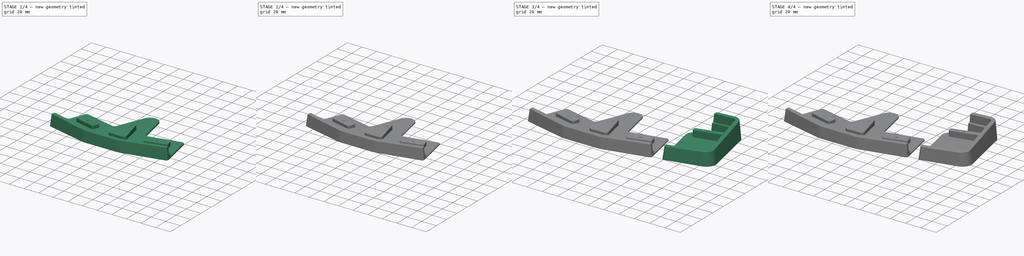
[diagram: build sequence overview — one tinted view per stage of 4, left to right]
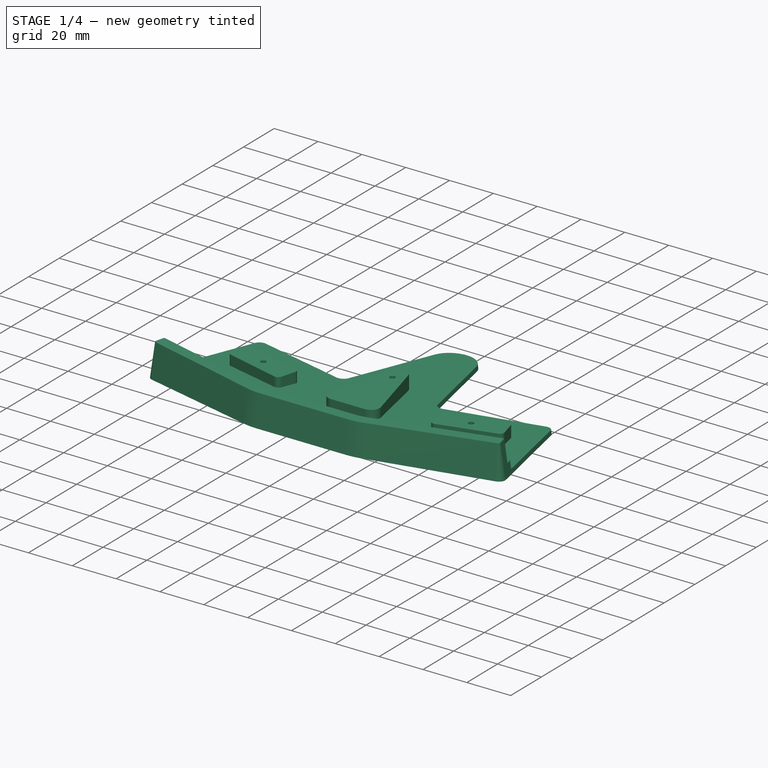
[diagram: stage 1 of 4 — iso view after this stage's code; geometry added in this stage tinted green]
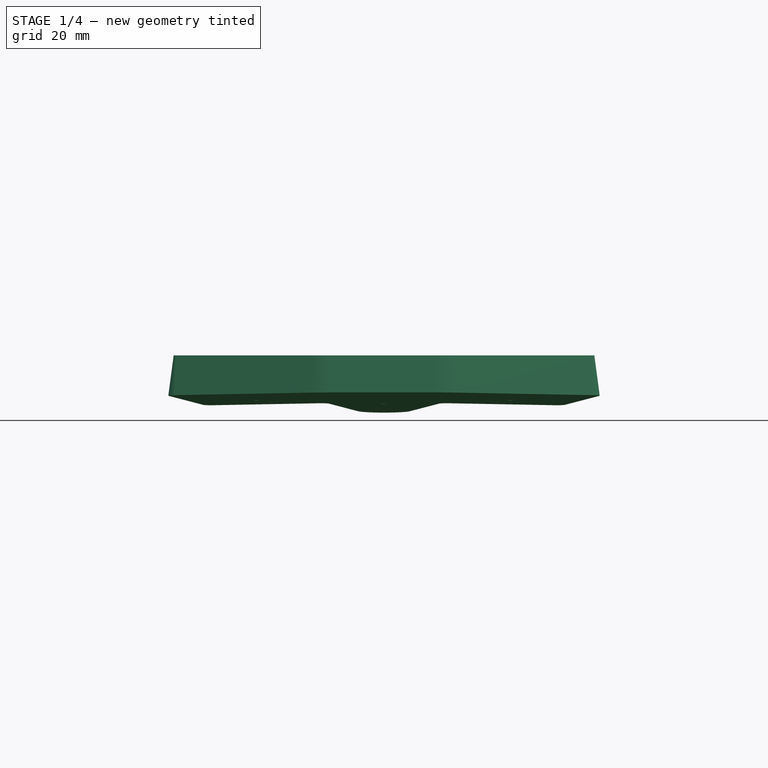
[diagram: stage 1 of 4 — front view after this stage's code; geometry added in this stage tinted green]
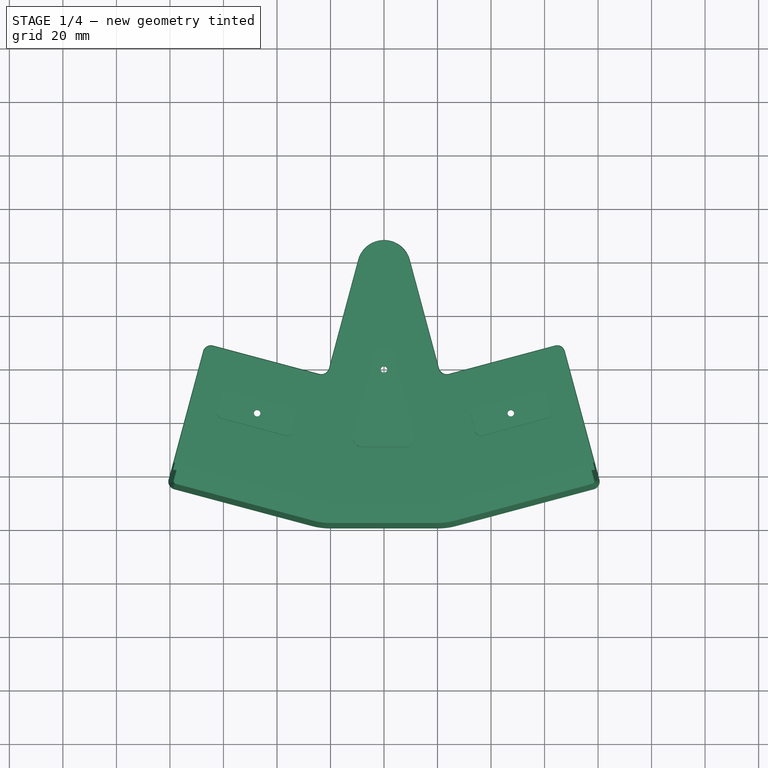
[diagram: stage 1 of 4 — top view after this stage's code; geometry added in this stage tinted green]
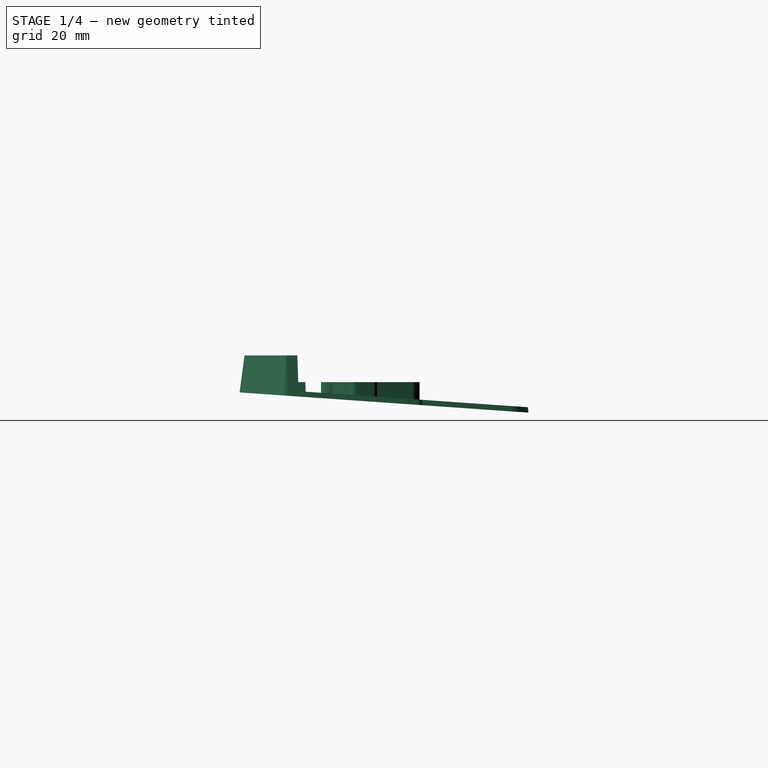
[diagram: stage 1 of 4 — right view after this stage's code; geometry added in this stage tinted green]
FCSTD DOCUMENT  (FreeCAD 0.20R)
Label: case.v5.1
License: All rights reserved
LicenseURL: http://en.wikipedia.org/wiki/All_rights_reserved
objects: Sketcher::SketchObject×10, PartDesign::Pocket×4, PartDesign::Fillet×4, PartDesign::AdditiveLoft×2, PartDesign::Hole×2, PartDesign::Chamfer×2, PartDesign::Body×2
note: 40 computed .brp shape members not serialized (recipe doc carries the construction recipe); baked Part::Feature solids carry a one-line shape summary decoded from their .brp

FEATURE [PartDesign::Body] Body  label="ext"
  Group = -> [Sketch001,Sketch,AdditiveLoft,Sketch002,Pocket,Sketch003,Pocket001,Sketch004,Hole,Chamfer,Fillet,Fillet001]
  Origin = -> Origin
  Tip = -> Fillet001
FEATURE [Sketcher::SketchObject] Sketch005
  AttachmentOffset = pos=(0,0,0) rot=(1,0,0;-0.069813rad)
  FullyConstrained = false
  MapMode = 5
  Placement = pos=(0,0,0) rot=(1,0,0;6.21337rad)
  Support = -> [XY_Plane001]
  sketch-geometry (18):
    g0: ArcOfCircle CenterX=19.8438 CenterY=-31.8435 CenterZ=0 NormalX=0 NormalY=0 NormalZ=1 AngleXU=0 Radius=27.75 StartAngle=4.71239 EndAngle=4.97419
    g1: LineSegment StartX=-19.8438 StartY=-59.5935 StartZ=0 EndX=19.8438 EndY=-59.5935 EndZ=0
    g2: ArcOfCircle CenterX=-19.8438 CenterY=-31.8435 CenterZ=0 NormalX=0 NormalY=0 NormalZ=1 AngleXU=0 Radius=27.75 StartAngle=4.45059 EndAngle=4.71239
    g3: LineSegment StartX=78.3859 StartY=-44.8861 StartZ=0 EndX=27.026 EndY=-58.648 EndZ=0
    g4: ArcOfCircle CenterX=77.6095 CenterY=-41.9883 CenterZ=0 NormalX=0 NormalY=0 NormalZ=1 AngleXU=0 Radius=3 StartAngle=4.97419 EndAngle=6.54498
    g5: LineSegment StartX=-78.3859 StartY=-44.8861 StartZ=0 EndX=-27.026 EndY=-58.648 EndZ=0
    g6: ArcOfCircle CenterX=-77.6095 CenterY=-41.9883 CenterZ=0 NormalX=0 NormalY=0 NormalZ=1 AngleXU=0 Radius=3 StartAngle=2.87979 EndAngle=4.45059
    g7: LineSegment StartX=80.5073 StartY=-41.2119 StartZ=0 EndX=67.6051 EndY=6.93952 EndZ=0
    g8: ArcOfCircle CenterX=64.7074 CenterY=6.16307 CenterZ=0 NormalX=0 NormalY=0 NormalZ=1 AngleXU=0 Radius=3 StartAngle=0.261799 EndAngle=1.8326
    g9: LineSegment StartX=-80.5073 StartY=-41.2119 StartZ=0 EndX=-67.6051 EndY=6.93952 EndZ=0
    g10: ArcOfCircle CenterX=-64.7074 CenterY=6.16307 CenterZ=0 NormalX=0 NormalY=0 NormalZ=1 AngleXU=0 Radius=3 StartAngle=1.309 EndAngle=2.87979
    g11: LineSegment StartX=-24.2314 StartY=-1.57662 StartZ=0 EndX=-63.9309 EndY=9.06084 EndZ=0
    g12: ArcOfCircle CenterX=-23.4549 CenterY=1.32116 CenterZ=0 NormalX=0 NormalY=0 NormalZ=1 AngleXU=0 Radius=3 StartAngle=4.45059 EndAngle=6.02139
    g13: LineSegment StartX=24.2314 StartY=-1.57662 StartZ=0 EndX=63.9309 EndY=9.06084 EndZ=0
    g14: ArcOfCircle CenterX=23.4549 CenterY=1.32116 CenterZ=0 NormalX=0 NormalY=0 NormalZ=1 AngleXU=0 Radius=3 StartAngle=3.40339 EndAngle=4.97419
    g15: LineSegment StartX=-9.65926 StartY=41.2161 StartZ=0 EndX=-20.5571 EndY=0.544701 EndZ=0
    g16: LineSegment StartX=9.65926 StartY=41.2161 StartZ=0 EndX=20.5571 EndY=0.544701 EndZ=0
    g17: ArcOfCircle CenterX=3.91e-14 CenterY=38.6279 CenterZ=0 NormalX=0 NormalY=0 NormalZ=1 AngleXU=0 Radius=10 StartAngle=0.261799 EndAngle=2.87979
  constraints (18):
    c: Coincident(g6,g9)
    c: Coincident(g5,g6)
    c: Coincident(g9,g10)
    c: Coincident(g10,g11)
    c: Coincident(g2,g5)
    c: Coincident(g11,g12)
    c: Coincident(g12,g15)
    c: Coincident(g1,g2)
    c: Coincident(g15,g17)
    c: Coincident(g16,g17)
    c: Coincident(g0,g1)
    c: Coincident(g14,g16)
    c: Coincident(g13,g14)
    c: Coincident(g0,g3)
    c: Coincident(g8,g13)
    c: Coincident(g7,g8)
    c: Coincident(g3,g4)
    c: Coincident(g4,g7)
FEATURE [Sketcher::SketchObject] Sketch006
  AttachmentOffset = pos=(0,0,18) rot=(0,0,1;0rad)
  FullyConstrained = false
  MapMode = 5
  Placement = pos=(0,0,18) rot=(0,0,1;0rad)
  Support = -> [XY_Plane001]
  sketch-geometry (18):
    g0: ArcOfCircle CenterX=77.6095 CenterY=-41.9883 CenterZ=0 NormalX=0 NormalY=0 NormalZ=1 AngleXU=0 Radius=1 StartAngle=4.97419 EndAngle=6.54498
    g1: LineSegment StartX=77.8683 StartY=-42.9543 StartZ=0 EndX=26.5084 EndY=-56.7161 EndZ=0
    g2: ArcOfCircle CenterX=19.8438 CenterY=-31.8435 CenterZ=0 NormalX=0 NormalY=0 NormalZ=1 AngleXU=0 Radius=25.75 StartAngle=4.71239 EndAngle=4.97419
    g3: LineSegment StartX=-19.8438 StartY=-57.5935 StartZ=0 EndX=19.8438 EndY=-57.5935 EndZ=0
    g4: ArcOfCircle CenterX=-19.8438 CenterY=-31.8435 CenterZ=0 NormalX=0 NormalY=0 NormalZ=1 AngleXU=0 Radius=25.75 StartAngle=4.45059 EndAngle=4.71239
    g5: LineSegment StartX=-77.8683 StartY=-42.9543 StartZ=0 EndX=-26.5084 EndY=-56.7161 EndZ=0
    g6: ArcOfCircle CenterX=-77.6095 CenterY=-41.9883 CenterZ=0 NormalX=0 NormalY=0 NormalZ=1 AngleXU=0 Radius=1 StartAngle=2.87979 EndAngle=4.45059
    g7: LineSegment StartX=78.5754 StartY=-41.7295 StartZ=0 EndX=65.6733 EndY=6.42188 EndZ=0
    g8: ArcOfCircle CenterX=64.7074 CenterY=6.16307 CenterZ=0 NormalX=0 NormalY=0 NormalZ=1 AngleXU=0 Radius=1 StartAngle=0.261799 EndAngle=1.8326
    g9: ArcOfCircle CenterX=23.4549 CenterY=1.32116 CenterZ=0 NormalX=0 NormalY=0 NormalZ=1 AngleXU=0 Radius=5 StartAngle=3.40339 EndAngle=4.97419
    g10: ArcOfCircle CenterX=-23.4549 CenterY=1.32116 CenterZ=0 NormalX=0 NormalY=0 NormalZ=1 AngleXU=0 Radius=5 StartAngle=4.45059 EndAngle=6.02139
    g11: LineSegment StartX=24.749 StartY=-3.50847 StartZ=0 EndX=64.4485 EndY=7.12899 EndZ=0
    g12: LineSegment StartX=-24.749 StartY=-3.50847 StartZ=0 EndX=-64.4485 EndY=7.12899 EndZ=0
    g13: LineSegment StartX=-78.5754 StartY=-41.7295 StartZ=0 EndX=-65.6733 EndY=6.42188 EndZ=0
    g14: ArcOfCircle CenterX=-64.7074 CenterY=6.16307 CenterZ=0 NormalX=0 NormalY=0 NormalZ=1 AngleXU=0 Radius=1 StartAngle=1.309 EndAngle=2.87979
    g15: ArcOfCircle CenterX=3.91e-14 CenterY=38.6279 CenterZ=0 NormalX=0 NormalY=0 NormalZ=1 AngleXU=0 Radius=8 StartAngle=0.261799 EndAngle=2.87979
    g16: LineSegment StartX=7.72741 StartY=40.6984 StartZ=0 EndX=18.6253 EndY=0.0270627 EndZ=0
    g17: LineSegment StartX=-7.72741 StartY=40.6984 StartZ=0 EndX=-18.6253 EndY=0.0270627 EndZ=0
  constraints (18):
    c: Coincident(g6,g13)
    c: Coincident(g5,g6)
    c: Coincident(g13,g14)
    c: Coincident(g12,g14)
    c: Coincident(g4,g5)
    c: Coincident(g10,g12)
    c: Coincident(g3,g4)
    c: Coincident(g10,g17)
    c: Coincident(g15,g17)
    c: Coincident(g15,g16)
    c: Coincident(g9,g16)
    c: Coincident(g2,g3)
    c: Coincident(g9,g11)
    c: Coincident(g1,g2)
    c: Coincident(g8,g11)
    c: Coincident(g7,g8)
    c: Coincident(g0,g1)
    c: Coincident(g0,g7)
FEATURE [PartDesign::AdditiveLoft] AdditiveLoft001
  Closed = true
  Profile = -> Sketch005
  Ruled = true
  Sections = -> [Sketch006]
FEATURE [Sketcher::SketchObject] Sketch007
  FullyConstrained = false
  MapMode = 5
  Placement = pos=(0,0,18) rot=(0,0,1;0rad)
  Support = -> [AdditiveLoft001]
  sketch-geometry (8):
    g0: ArcOfCircle CenterX=19.8438 CenterY=-31.8435 CenterZ=0 NormalX=0 NormalY=0 NormalZ=1 AngleXU=0 Radius=20.75 StartAngle=4.71239 EndAngle=4.97419
    g1: LineSegment StartX=-19.8438 StartY=-52.5935 StartZ=0 EndX=19.8438 EndY=-52.5935 EndZ=0
    g2: ArcOfCircle CenterX=-19.8438 CenterY=-31.8435 CenterZ=0 NormalX=0 NormalY=0 NormalZ=1 AngleXU=0 Radius=20.75 StartAngle=4.45059 EndAngle=4.71239
    g3: LineSegment StartX=81.4038 StartY=-36.8305 StartZ=0 EndX=25.2143 EndY=-51.8865 EndZ=0
    g4: LineSegment StartX=-81.4038 StartY=-36.8305 StartZ=0 EndX=-25.2143 EndY=-51.8865 EndZ=0
    g5: LineSegment StartX=81.4038 StartY=-36.8305 StartZ=0 EndX=58.1377 EndY=50 EndZ=0
    g6: LineSegment StartX=-81.4038 StartY=-36.8305 StartZ=0 EndX=-58.1377 EndY=50 EndZ=0
    g7: LineSegment StartX=-58.1377 StartY=50 StartZ=0 EndX=58.1377 EndY=50 EndZ=0
FEATURE [PartDesign::Pocket] Pocket002
  BaseFeature = -> AdditiveLoft001
  Direction = (0,0,-1)
  Length = 10
  Length2 = 5
  Profile = -> Sketch007
  ReferenceAxis = -> Sketch007 [N_Axis]
  Type = 0
FEATURE [Sketcher::SketchObject] Sketch008
  FullyConstrained = false
  MapMode = 5
  Placement = pos=(0,0,8) rot=(0,0,1;0rad)
  Support = -> [Pocket002]
  sketch-geometry (33):
    g0: Circle CenterX=47.4001 CenterY=-16.3717 CenterZ=0 NormalX=0 NormalY=0 NormalZ=-1 AngleXU=0 Radius=1.1
    g1: Circle CenterX=0 CenterY=0 CenterZ=0 NormalX=0 NormalY=0 NormalZ=-1 AngleXU=0 Radius=1.1
    g2: ArcOfCircle CenterX=58.6716 CenterY=-9.94809 CenterZ=0 NormalX=0 NormalY=0 NormalZ=1 AngleXU=0 Radius=2 StartAngle=0.261799 EndAngle=1.8326
    g3: LineSegment StartX=62.3052 StartY=-15.7814 StartZ=0 EndX=60.6034 EndY=-9.43045 EndZ=0
    g4: ArcOfCircle CenterX=60.3733 CenterY=-16.299 CenterZ=0 NormalX=0 NormalY=0 NormalZ=1 AngleXU=0 Radius=2 StartAngle=4.97419 EndAngle=6.54498
    g5: LineSegment StartX=60.8909 StartY=-18.2309 StartZ=0 EndX=36.6462 EndY=-24.7273 EndZ=0
    g6: ArcOfCircle CenterX=36.1286 CenterY=-22.7954 CenterZ=0 NormalX=0 NormalY=0 NormalZ=1 AngleXU=0 Radius=2 StartAngle=3.40339 EndAngle=4.97419
    g7: LineSegment StartX=32.495 StartY=-16.9621 StartZ=0 EndX=34.1967 EndY=-23.313 EndZ=0
    g8: LineSegment StartX=58.1539 StartY=-8.01623 StartZ=0 EndX=33.9092 EndY=-14.5126 EndZ=0
    g9: ArcOfCircle CenterX=34.4268 CenterY=-16.4444 CenterZ=0 NormalX=0 NormalY=0 NormalZ=1 AngleXU=0 Radius=2 StartAngle=1.8326 EndAngle=3.40339
    g10: ArcOfCircle CenterX=9e-15 CenterY=3.85454 CenterZ=0 NormalX=0 NormalY=0 NormalZ=1 AngleXU=0 Radius=4 StartAngle=0.261799 EndAngle=2.87979
    g11: LineSegment StartX=3.8637 StartY=4.88982 StartZ=0 EndX=11.5953 EndY=-23.9647 EndZ=0
    g12: ArcOfCircle CenterX=7.73155 CenterY=-25 CenterZ=0 NormalX=0 NormalY=0 NormalZ=1 AngleXU=0 Radius=4 StartAngle=4.71239 EndAngle=6.54498
    g13: LineSegment StartX=-7.73155 StartY=-29 StartZ=0 EndX=7.73155 EndY=-29 EndZ=0
    g14: LineSegment StartX=-3.8637 StartY=4.88982 StartZ=0 EndX=-11.5953 EndY=-23.9647 EndZ=0
    g15: ArcOfCircle CenterX=-7.73155 CenterY=-25 CenterZ=0 NormalX=0 NormalY=0 NormalZ=1 AngleXU=0 Radius=4 StartAngle=2.87979 EndAngle=4.71239
    g16: Circle CenterX=-47.4001 CenterY=-16.3717 CenterZ=0 NormalX=0 NormalY=0 NormalZ=-1 AngleXU=0 Radius=1.1
    g17: ArcOfCircle CenterX=-58.6716 CenterY=-9.94809 CenterZ=0 NormalX=0 NormalY=0 NormalZ=1 AngleXU=0 Radius=2 StartAngle=1.309 EndAngle=2.87979
    g18: LineSegment StartX=-62.3052 StartY=-15.7814 StartZ=0 EndX=-60.6034 EndY=-9.43045 EndZ=0
    g19: ArcOfCircle CenterX=-60.3733 CenterY=-16.299 CenterZ=0 NormalX=0 NormalY=0 NormalZ=1 AngleXU=0 Radius=2 StartAngle=2.87979 EndAngle=4.45059
    g20: LineSegment StartX=-60.8909 StartY=-18.2309 StartZ=0 EndX=-36.6462 EndY=-24.7273 EndZ=0
    g21: ArcOfCircle CenterX=-36.1286 CenterY=-22.7954 CenterZ=0 NormalX=0 NormalY=0 NormalZ=1 AngleXU=0 Radius=2 StartAngle=4.45059 EndAngle=6.02139
    g22: LineSegment StartX=-32.495 StartY=-16.9621 StartZ=0 EndX=-34.1967 EndY=-23.313 EndZ=0
    g23: LineSegment StartX=-58.1539 StartY=-8.01623 StartZ=0 EndX=-33.9092 EndY=-14.5126 EndZ=0
    g24: ArcOfCircle CenterX=-34.4268 CenterY=-16.4444 CenterZ=0 NormalX=0 NormalY=0 NormalZ=1 AngleXU=0 Radius=2 StartAngle=6.02139 EndAngle=7.59218
    g25: ArcOfCircle CenterX=19.8438 CenterY=-31.8435 CenterZ=0 NormalX=0 NormalY=0 NormalZ=1 AngleXU=0 Radius=18 StartAngle=4.71239 EndAngle=4.97419
    g26: LineSegment StartX=-19.8438 StartY=-49.8435 StartZ=0 EndX=19.8438 EndY=-49.8435 EndZ=0
    g27: ArcOfCircle CenterX=-19.8438 CenterY=-31.8435 CenterZ=0 NormalX=0 NormalY=0 NormalZ=1 AngleXU=0 Radius=18 StartAngle=4.45059 EndAngle=4.71239
    g28: LineSegment StartX=80.6921 StartY=-34.1742 StartZ=0 EndX=24.5026 EndY=-49.2302 EndZ=0
    g29: LineSegment StartX=-80.6921 StartY=-34.1742 StartZ=0 EndX=-24.5026 EndY=-49.2302 EndZ=0
    g30: LineSegment StartX=80.6921 StartY=-34.1742 StartZ=0 EndX=58.1377 EndY=50 EndZ=0
    g31: LineSegment StartX=-80.6921 StartY=-34.1742 StartZ=0 EndX=-58.1377 EndY=50 EndZ=0
    g32: LineSegment StartX=-58.1377 StartY=50 StartZ=0 EndX=58.1377 EndY=50 EndZ=0
  constraints (30):
    c: Coincident(g29,g31)
    c: Coincident(g18,g19)
    c: Coincident(g19,g20)
    c: Coincident(g17,g18)
    c: Coincident(g17,g23)
    c: Coincident(g31,g32)
    c: Coincident(g20,g21)
    c: Coincident(g21,g22)
    c: Coincident(g23,g24)
    c: Coincident(g22,g24)
    c: Coincident(g27,g29)
    c: Coincident(g26,g27)
    c: Coincident(g14,g15)
    c: Coincident(g13,g15)
    c: Coincident(g10,g14)
    c: Coincident(g10,g11)
    c: Coincident(g12,g13)
    c: Coincident(g11,g12)
    c: Coincident(g25,g26)
    c: Coincident(g25,g28)
    c: Coincident(g7,g9)
    c: Coincident(g8,g9)
    c: Coincident(g6,g7)
    c: Coincident(g5,g6)
    c: Coincident(g30,g32)
    c: Coincident(g2,g8)
    c: Coincident(g2,g3)
    c: Coincident(g4,g5)
    c: Coincident(g3,g4)
    c: Coincident(g28,g30)
FEATURE [PartDesign::Pocket] Pocket003
  BaseFeature = -> Pocket002
  Direction = (0,0,-1)
  Length = 0
  Length2 = 5
  Offset = -2
  Profile = -> Sketch008
  ReferenceAxis = -> Sketch008 [N_Axis]
  Type = 3
  UpToFace = -> Pocket002 [Face1]
FEATURE [Sketcher::SketchObject] Sketch009
  ExternalGeometry = -> [Pocket003]
  FullyConstrained = true
  MapMode = 5
  Placement = pos=(0,0,8) rot=(0,0,1;0rad)
  Support = -> [Pocket002]
  sketch-geometry (3):
    g0: Circle CenterX=-47.4001 CenterY=-16.3717 CenterZ=0 NormalX=0 NormalY=0 NormalZ=1 AngleXU=0 Radius=1.1
    g1: Circle CenterX=0 CenterY=0 CenterZ=0 NormalX=0 NormalY=0 NormalZ=1 AngleXU=0 Radius=1.1
    g2: Circle CenterX=47.4001 CenterY=-16.3717 CenterZ=0 NormalX=0 NormalY=0 NormalZ=1 AngleXU=0 Radius=1.1
  constraints (6):
    c: Coincident(g0,g-5)
    c: Coincident(g1,g-4)
    c: Coincident(g2,g-3)
    c: Equal(g2,g1)
    c: Equal(g1,g0)
    c: Diameter(g1) = 2.2
FEATURE [PartDesign::Hole] Hole001
  BaseFeature = -> Pocket003
  CustomThreadClearance = 0
  Depth = 394.222
  DepthType = 1
  Diameter = 2.42
  DrillForDepth = false
  DrillPoint = 1
  DrillPointAngle = 118
  HoleCutCountersinkAngle = 90
  HoleCutCustomValues = false
  HoleCutDepth = 0
  HoleCutDiameter = 6.1
  HoleCutType = 0
  ModelThread = false
  Profile = -> Sketch009
  Tapered = false
  TaperedAngle = 90
  ThreadClass = 0
  ThreadDepth = 394.222
  ThreadDepthType = 0
  ThreadDirection = 0
  ThreadFit = 0
  ThreadSize = 7
  ThreadType = 1
  Threaded = false
  UseCustomThreadClearance = false
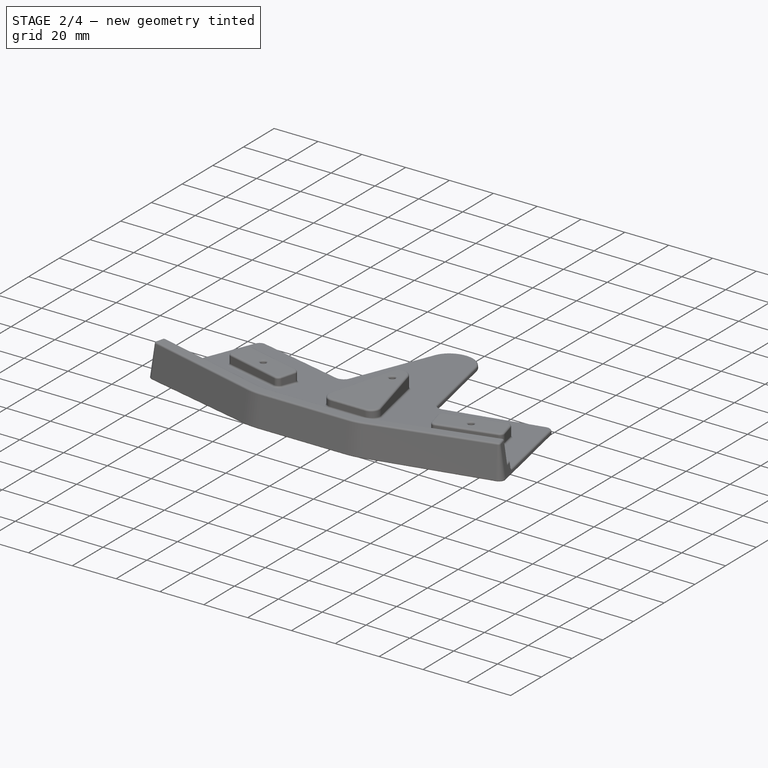
[diagram: stage 2 of 4 — iso view after this stage's code; geometry added in this stage tinted green]
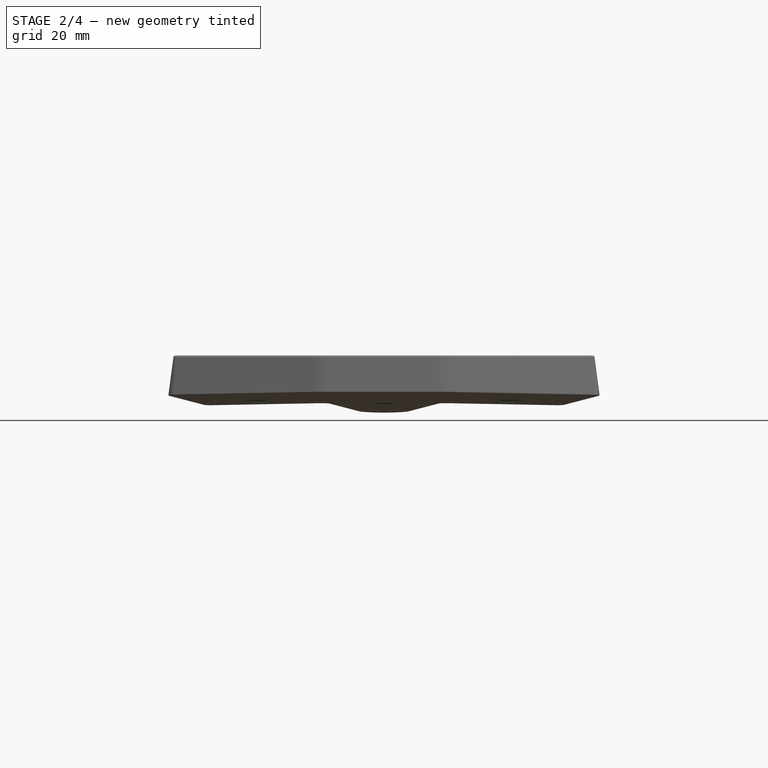
[diagram: stage 2 of 4 — front view after this stage's code; geometry added in this stage tinted green]
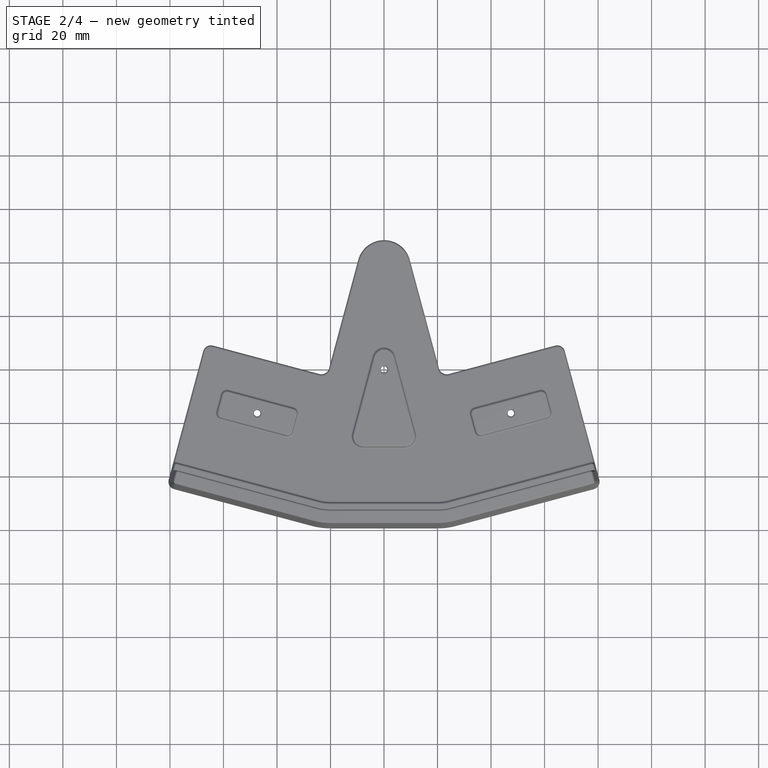
[diagram: stage 2 of 4 — top view after this stage's code; geometry added in this stage tinted green]
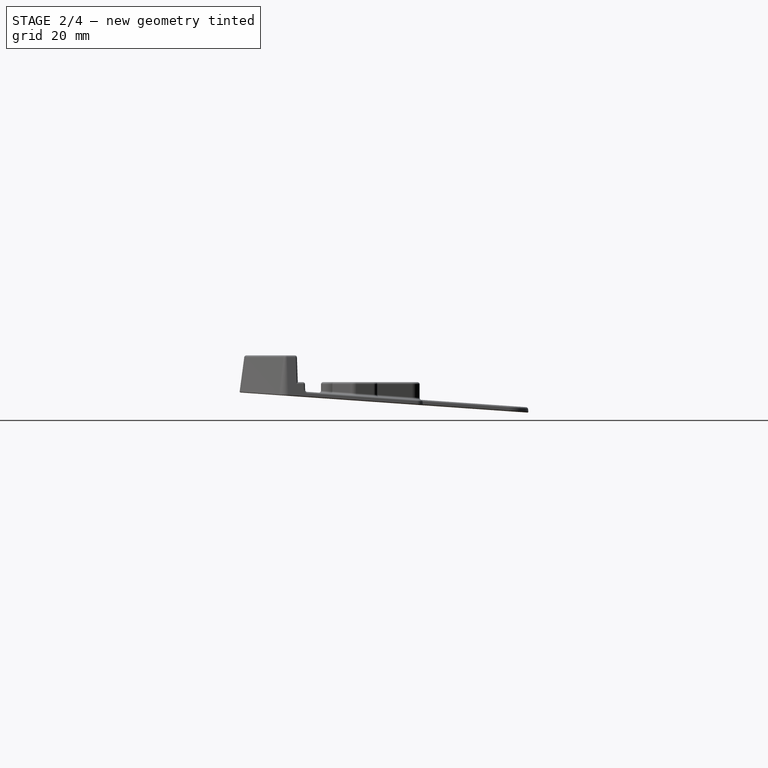
[diagram: stage 2 of 4 — right view after this stage's code; geometry added in this stage tinted green]
FEATURE [PartDesign::Chamfer] Chamfer001
  Angle = 45
  Base = -> Hole001 [Edge21,Edge20,Edge19]
  BaseFeature = -> Hole001
  ChamferType = 0
  FlipDirection = false
  Size = 3
  Size2 = 1
  SupportTransform = false
  UseAllEdges = false
FEATURE [PartDesign::Fillet] Fillet002
  Base = -> Chamfer001 [Face28,Edge51,Edge50,Edge49,Face24,Edge83,Edge40,Edge39,Edge38,Edge139,Edge124,Edge159,Edge121,Edge73,Edge123]
  BaseFeature = -> Chamfer001
  Radius = 0.75
  SupportTransform = false
  UseAllEdges = false
FEATURE [PartDesign::Fillet] Fillet003
  Base = -> Fillet002 [Face4]
  BaseFeature = -> Fillet002
  Radius = 0.35
  SupportTransform = false
  UseAllEdges = false
FEATURE [PartDesign::Body] Body001  label="int"
  Group = -> [Sketch005,Sketch006,AdditiveLoft001,Sketch007,Pocket002,Sketch008,Pocket003,Sketch009,Hole001,Chamfer001,Fillet002,Fillet003]
  Origin = -> Origin001
  Tip = -> Fillet003
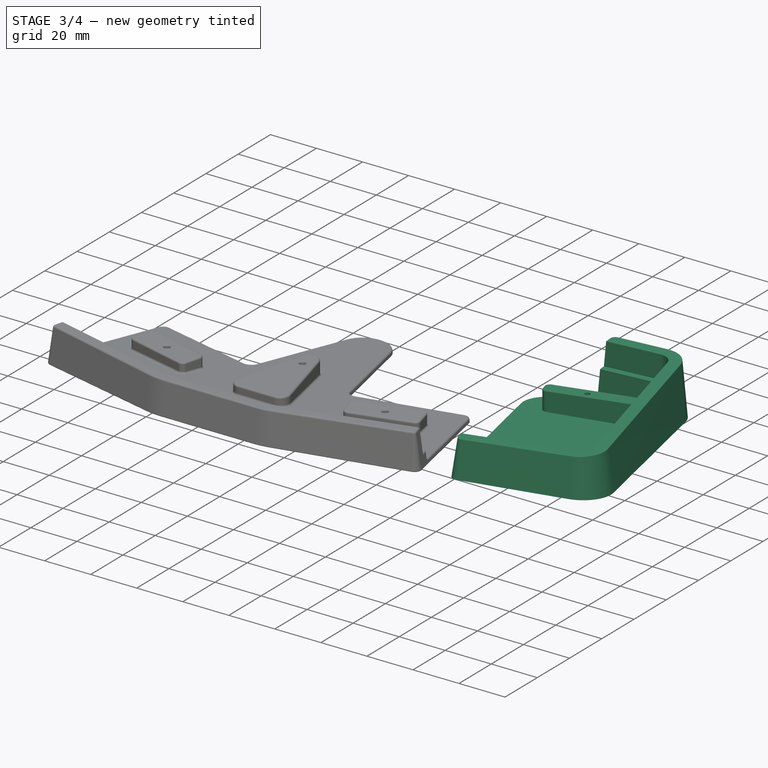
[diagram: stage 3 of 4 — iso view after this stage's code; geometry added in this stage tinted green]
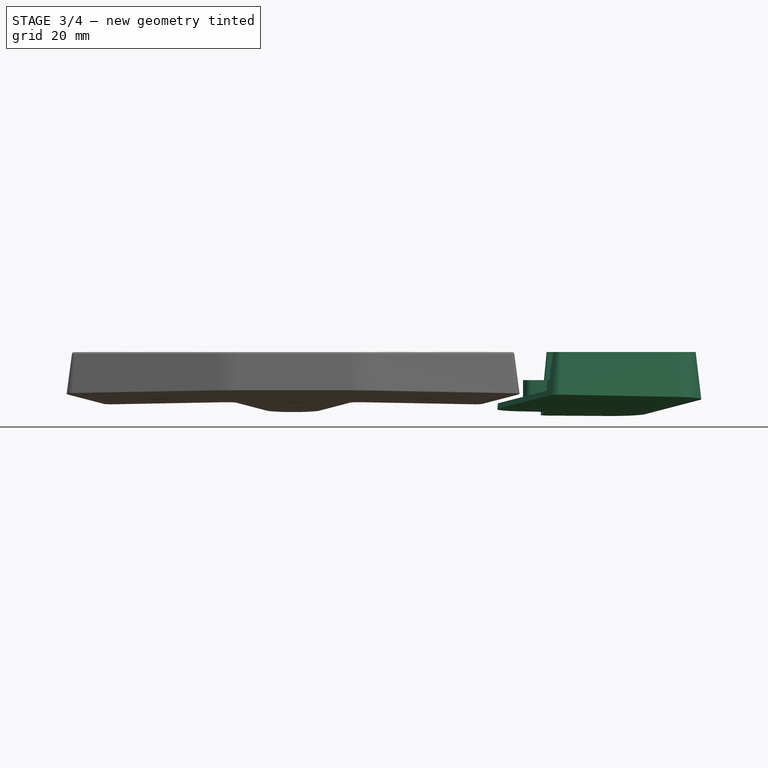
[diagram: stage 3 of 4 — front view after this stage's code; geometry added in this stage tinted green]
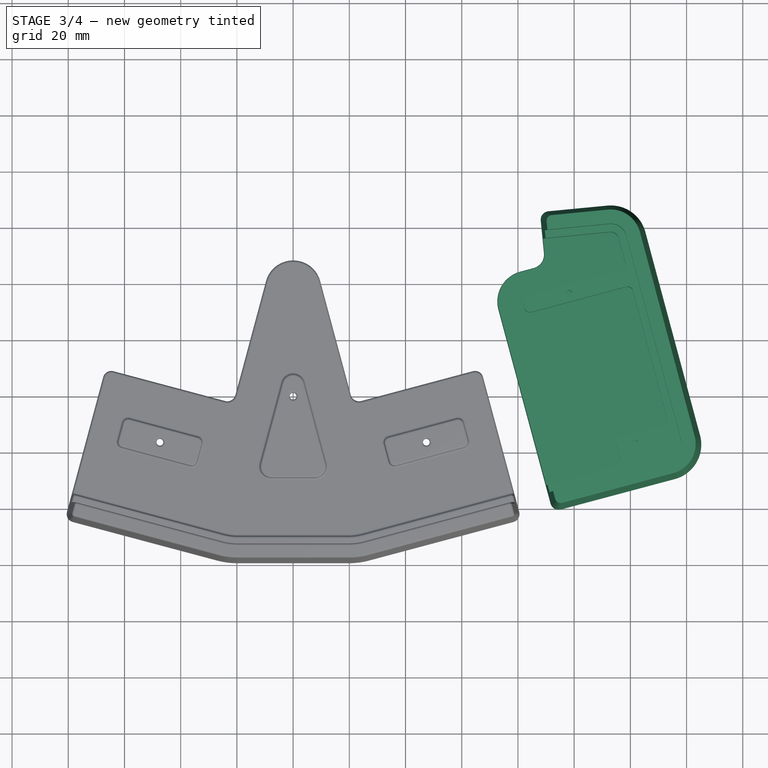
[diagram: stage 3 of 4 — top view after this stage's code; geometry added in this stage tinted green]
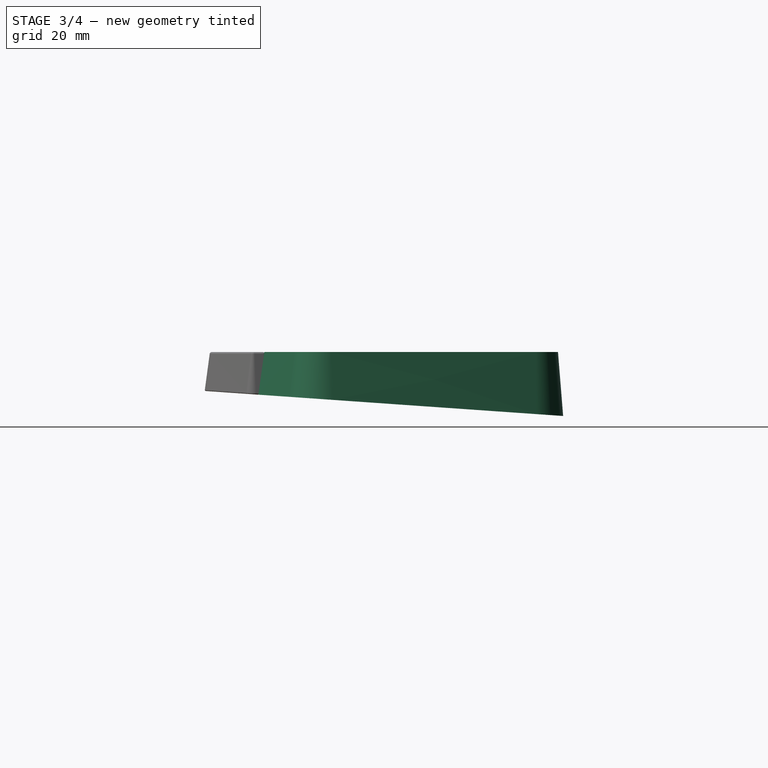
[diagram: stage 3 of 4 — right view after this stage's code; geometry added in this stage tinted green]
FEATURE [Sketcher::SketchObject] Sketch
  AttachmentOffset = pos=(0,0,0) rot=(1,0,0;-0.069813rad)
  FullyConstrained = false
  MapMode = 5
  Placement = pos=(0,0,0) rot=(1,0,0;6.21337rad)
  Support = -> [XY_Plane]
  sketch-geometry (12):
    g0: ArcOfCircle CenterX=113.019 CenterY=55.5108 CenterZ=0 NormalX=0 NormalY=0 NormalZ=1 AngleXU=0 Radius=12.75 StartAngle=0.261799 EndAngle=1.66745
    g1: LineSegment StartX=125.334 StartY=58.8107 StartZ=0 EndX=144.814 EndY=-13.8871 EndZ=0
    g2: ArcOfCircle CenterX=132.498 CenterY=-17.187 CenterZ=0 NormalX=0 NormalY=0 NormalZ=1 AngleXU=0 Radius=12.75 StartAngle=4.97419 EndAngle=6.54498
    g3: ArcOfCircle CenterX=83.7831 CenterY=33.8822 CenterZ=0 NormalX=0 NormalY=0 NormalZ=1 AngleXU=0 Radius=11.1169 StartAngle=1.8326 EndAngle=3.40339
    g4: LineSegment StartX=80.9058 StartY=44.6203 StartZ=0 EndX=85.573 EndY=45.8709 EndZ=0
    g5: ArcOfCircle CenterX=84.2789 CenterY=50.7005 CenterZ=0 NormalX=0 NormalY=0 NormalZ=1 AngleXU=0 Radius=5 StartAngle=4.97419 EndAngle=6.37984
    g6: LineSegment StartX=135.798 StartY=-29.5026 StartZ=0 EndX=95.2733 EndY=-40.3612 EndZ=0
    g7: LineSegment StartX=91.5991 StartY=-38.2398 StartZ=0 EndX=73.045 EndY=31.005 EndZ=0
    g8: ArcOfCircle CenterX=94.4969 CenterY=-37.4634 CenterZ=0 NormalX=0 NormalY=0 NormalZ=1 AngleXU=0 Radius=3 StartAngle=3.40339 EndAngle=4.97419
    g9: LineSegment StartX=89.2556 StartY=51.183 StartZ=0 EndX=88.1203 EndY=62.8925 EndZ=0
    g10: LineSegment StartX=90.8168 StartY=66.168 StartZ=0 EndX=111.789 EndY=68.2013 EndZ=0
    g11: ArcOfCircle CenterX=91.1063 CenterY=63.182 CenterZ=0 NormalX=0 NormalY=0 NormalZ=1 AngleXU=0 Radius=3 StartAngle=1.66745 EndAngle=3.23824
  constraints (12):
    c: Coincident(g3,g7)
    c: Coincident(g3,g4)
    c: Coincident(g4,g5)
    c: Coincident(g9,g11)
    c: Coincident(g5,g9)
    c: Coincident(g10,g11)
    c: Coincident(g7,g8)
    c: Coincident(g6,g8)
    c: Coincident(g0,g10)
    c: Coincident(g0,g1)
    c: Coincident(g2,g6)
    c: Coincident(g1,g2)
FEATURE [Sketcher::SketchObject] Sketch001
  AttachmentOffset = pos=(0,0,18) rot=(0,0,1;0rad)
  FullyConstrained = false
  MapMode = 5
  Placement = pos=(0,0,18) rot=(0,0,1;0rad)
  Support = -> [XY_Plane]
  sketch-geometry (12):
    g0: ArcOfCircle CenterX=113.019 CenterY=55.5108 CenterZ=0 NormalX=0 NormalY=0 NormalZ=1 AngleXU=0 Radius=10.75 StartAngle=0.261799 EndAngle=1.66745
    g1: LineSegment StartX=123.403 StartY=58.2931 StartZ=0 EndX=142.882 EndY=-14.4047 EndZ=0
    g2: ArcOfCircle CenterX=132.498 CenterY=-17.187 CenterZ=0 NormalX=0 NormalY=0 NormalZ=1 AngleXU=0 Radius=10.75 StartAngle=4.97419 EndAngle=6.54498
    g3: ArcOfCircle CenterX=83.7831 CenterY=33.8822 CenterZ=0 NormalX=0 NormalY=0 NormalZ=1 AngleXU=0 Radius=9.11691 StartAngle=1.8326 EndAngle=3.40339
    g4: LineSegment StartX=81.4235 StartY=42.6885 StartZ=0 EndX=86.0907 EndY=43.9391 EndZ=0
    g5: ArcOfCircle CenterX=84.2789 CenterY=50.7005 CenterZ=0 NormalX=0 NormalY=0 NormalZ=1 AngleXU=0 Radius=7 StartAngle=4.97419 EndAngle=6.37984
    g6: LineSegment StartX=91.2463 StartY=51.376 StartZ=0 EndX=90.2075 EndY=62.0902 EndZ=0
    g7: LineSegment StartX=92.0052 StartY=64.2738 StartZ=0 EndX=111.982 EndY=66.2106 EndZ=0
    g8: ArcOfCircle CenterX=92.1982 CenterY=62.2832 CenterZ=0 NormalX=0 NormalY=0 NormalZ=1 AngleXU=0 Radius=2 StartAngle=1.66745 EndAngle=3.23824
    g9: LineSegment StartX=135.281 StartY=-27.5707 StartZ=0 EndX=95.7216 EndY=-38.1705 EndZ=0
    g10: LineSegment StartX=93.2721 StartY=-36.7563 StartZ=0 EndX=74.9768 EndY=31.5226 EndZ=0
    g11: ArcOfCircle CenterX=95.204 CenterY=-36.2386 CenterZ=0 NormalX=0 NormalY=0 NormalZ=1 AngleXU=0 Radius=2 StartAngle=3.40339 EndAngle=4.97419
  constraints (12):
    c: Coincident(g3,g10)
    c: Coincident(g3,g4)
    c: Coincident(g4,g5)
    c: Coincident(g6,g8)
    c: Coincident(g5,g6)
    c: Coincident(g7,g8)
    c: Coincident(g10,g11)
    c: Coincident(g9,g11)
    c: Coincident(g0,g7)
    c: Coincident(g0,g1)
    c: Coincident(g2,g9)
    c: Coincident(g1,g2)
FEATURE [PartDesign::AdditiveLoft] AdditiveLoft
  Closed = true
  Profile = -> Sketch
  Ruled = true
  Sections = -> [Sketch001]
FEATURE [Sketcher::SketchObject] Sketch002
  FullyConstrained = false
  MapMode = 5
  Placement = pos=(0,0,18) rot=(0,0,1;0rad)
  Support = -> [AdditiveLoft]
  sketch-geometry (6):
    g0: ArcOfCircle CenterX=113.019 CenterY=55.5108 CenterZ=0 NormalX=0 NormalY=0 NormalZ=1 AngleXU=0 Radius=5.75 StartAngle=0.261799 EndAngle=1.66745
    g1: LineSegment StartX=118.573 StartY=56.999 StartZ=0 EndX=138.052 EndY=-15.6988 EndZ=0
    g2: ArcOfCircle CenterX=132.498 CenterY=-17.187 CenterZ=0 NormalX=0 NormalY=0 NormalZ=1 AngleXU=0 Radius=5.75 StartAngle=4.97419 EndAngle=6.54498
    g3: LineSegment StartX=133.986 StartY=-22.7411 StartZ=0 EndX=87.5828 EndY=-35.1749 EndZ=0
    g4: LineSegment StartX=63.0342 StartY=56.4416 StartZ=0 EndX=112.464 EndY=61.2339 EndZ=0
    g5: LineSegment StartX=63.0342 StartY=56.4416 StartZ=0 EndX=87.5828 EndY=-35.1749 EndZ=0
  constraints (6):
    c: Coincident(g4,g5)
    c: Coincident(g3,g5)
    c: Coincident(g0,g4)
    c: Coincident(g0,g1)
    c: Coincident(g2,g3)
    c: Coincident(g1,g2)
FEATURE [PartDesign::Pocket] Pocket
  BaseFeature = -> AdditiveLoft
  Direction = (0,0,-1)
  Length = 10
  Length2 = 5
  Profile = -> Sketch002
  ReferenceAxis = -> Sketch002 [N_Axis]
  Type = 0
FEATURE [Sketcher::SketchObject] Sketch003
  FullyConstrained = false
  MapMode = 5
  Placement = pos=(0,0,8) rot=(0,0,1;0rad)
  Support = -> [Pocket]
  sketch-geometry (20):
    g0: Circle CenterX=121.71 CenterY=-16.6741 CenterZ=0 NormalX=0 NormalY=0 NormalZ=-1 AngleXU=0 Radius=1.1
    g1: Circle CenterX=98.1026 CenterY=36.658 CenterZ=0 NormalX=0 NormalY=0 NormalZ=-1 AngleXU=0 Radius=1.1
    g2: ArcOfCircle CenterX=113.019 CenterY=55.5108 CenterZ=0 NormalX=0 NormalY=0 NormalZ=1 AngleXU=0 Radius=3 StartAngle=0.261799 EndAngle=1.66745
    g3: ArcOfCircle CenterX=114.61 CenterY=-23.0155 CenterZ=0 NormalX=0 NormalY=0 NormalZ=1 AngleXU=0 Radius=2 StartAngle=4.97419 EndAngle=6.54498
    g4: ArcOfCircle CenterX=83.7831 CenterY=33.8822 CenterZ=0 NormalX=0 NormalY=0 NormalZ=1 AngleXU=0 Radius=2 StartAngle=1.8326 EndAngle=3.40339
    g5: LineSegment StartX=82.3818 StartY=31.3845 StartZ=0 EndX=81.8512 EndY=33.3646 EndZ=0
    g6: ArcOfCircle CenterX=84.3137 CenterY=31.9021 CenterZ=0 NormalX=0 NormalY=0 NormalZ=1 AngleXU=0 Radius=2 StartAngle=3.40339 EndAngle=4.97419
    g7: ArcOfCircle CenterX=131.19 CenterY=-8.44011 CenterZ=0 NormalX=0 NormalY=0 NormalZ=1 AngleXU=0 Radius=2 StartAngle=4.97419 EndAngle=6.54498
    g8: LineSegment StartX=116.542 StartY=-22.4979 StartZ=0 EndX=115.044 EndY=-16.9076 EndZ=0
    g9: LineSegment StartX=116.458 StartY=-14.4581 StartZ=0 EndX=131.707 EndY=-10.372 EndZ=0
    g10: ArcOfCircle CenterX=116.975 CenterY=-16.3899 CenterZ=0 NormalX=0 NormalY=0 NormalZ=1 AngleXU=0 Radius=2 StartAngle=1.8326 EndAngle=3.40339
    g11: LineSegment StartX=83.2655 StartY=35.8141 StartZ=0 EndX=116.916 EndY=44.8307 EndZ=0
    g12: LineSegment StartX=115.917 StartY=56.2872 StartZ=0 EndX=118.33 EndY=47.2802 EndZ=0
    g13: ArcOfCircle CenterX=116.398 CenterY=46.7626 CenterZ=0 NormalX=0 NormalY=0 NormalZ=1 AngleXU=0 Radius=2 StartAngle=4.97419 EndAngle=6.54498
    g14: LineSegment StartX=118.482 StartY=38.9868 StartZ=0 EndX=84.8313 EndY=29.9702 EndZ=0
    g15: LineSegment StartX=120.931 StartY=37.5726 StartZ=0 EndX=133.122 EndY=-7.92247 EndZ=0
    g16: ArcOfCircle CenterX=118.999 CenterY=37.055 CenterZ=0 NormalX=0 NormalY=0 NormalZ=1 AngleXU=0 Radius=2 StartAngle=0.261799 EndAngle=1.8326
    g17: LineSegment StartX=63.7558 StartY=53.7486 StartZ=0 EndX=112.729 EndY=58.4968 EndZ=0
    g18: LineSegment StartX=115.127 StartY=-24.9473 StartZ=0 EndX=86.871 EndY=-32.5186 EndZ=0
    g19: LineSegment StartX=86.871 StartY=-32.5186 StartZ=0 EndX=63.7558 EndY=53.7486 EndZ=0
  constraints (18):
    c: Coincident(g17,g19)
    c: Coincident(g4,g5)
    c: Coincident(g5,g6)
    c: Coincident(g4,g11)
    c: Coincident(g6,g14)
    c: Coincident(g18,g19)
    c: Coincident(g2,g17)
    c: Coincident(g8,g10)
    c: Coincident(g3,g18)
    c: Coincident(g2,g12)
    c: Coincident(g9,g10)
    c: Coincident(g3,g8)
    c: Coincident(g11,g13)
    c: Coincident(g12,g13)
    c: Coincident(g14,g16)
    c: Coincident(g15,g16)
    c: Coincident(g7,g9)
    c: Coincident(g7,g15)
FEATURE [PartDesign::Pocket] Pocket001
  BaseFeature = -> Pocket
  Direction = (0,0,-1)
  Length = 0
  Length2 = 5
  Offset = -2
  Profile = -> Sketch003
  ReferenceAxis = -> Sketch003 [N_Axis]
  Type = 3
  UpToFace = -> Pocket [Face1]
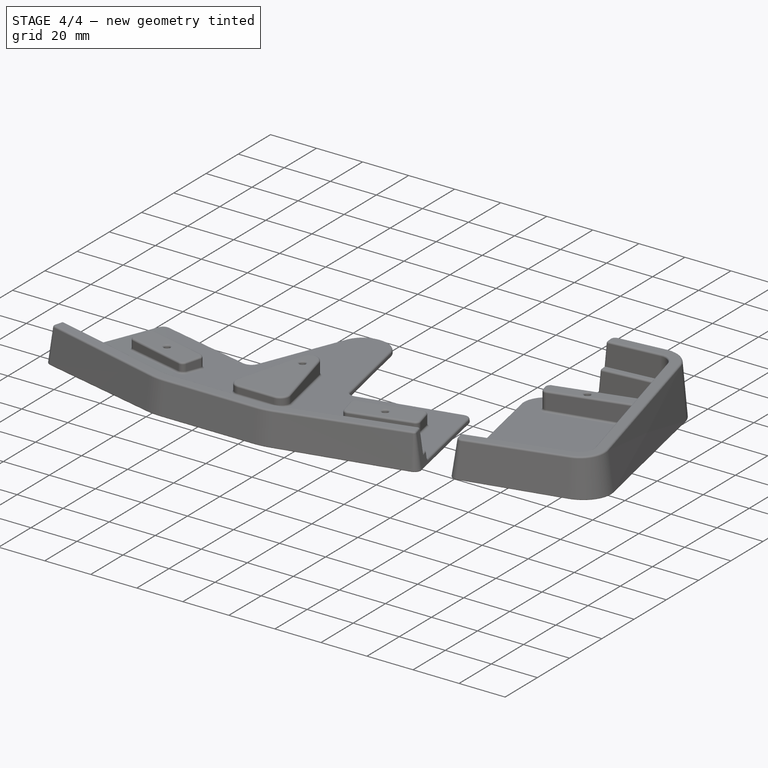
[diagram: stage 4 of 4 — iso view after this stage's code; geometry added in this stage tinted green]
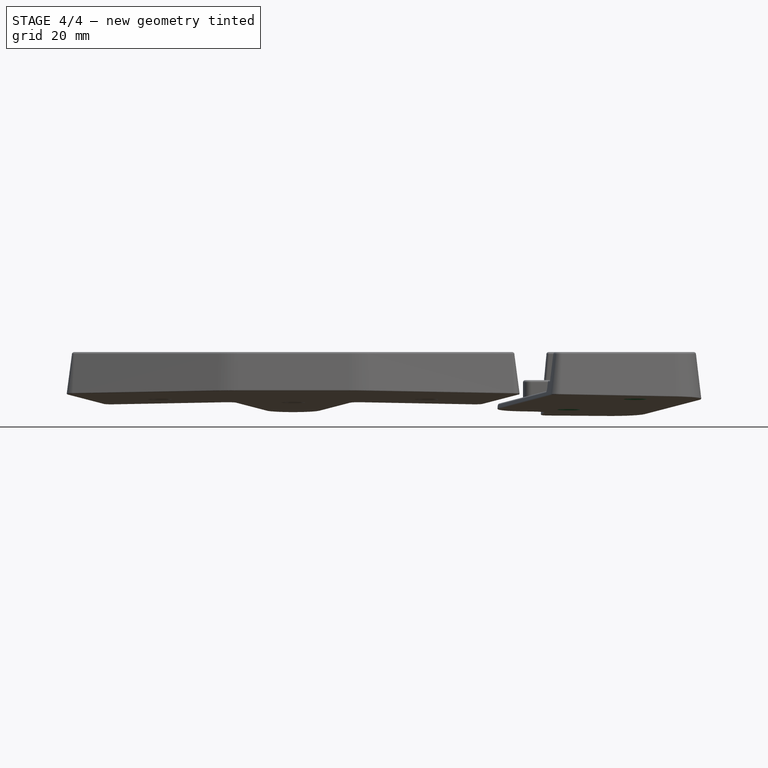
[diagram: stage 4 of 4 — front view after this stage's code; geometry added in this stage tinted green]
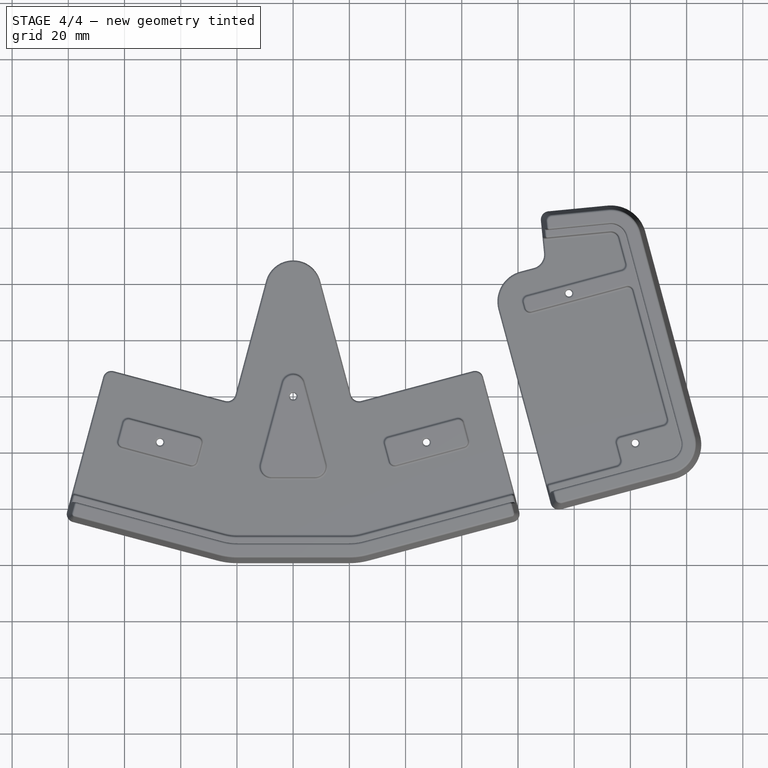
[diagram: stage 4 of 4 — top view after this stage's code; geometry added in this stage tinted green]
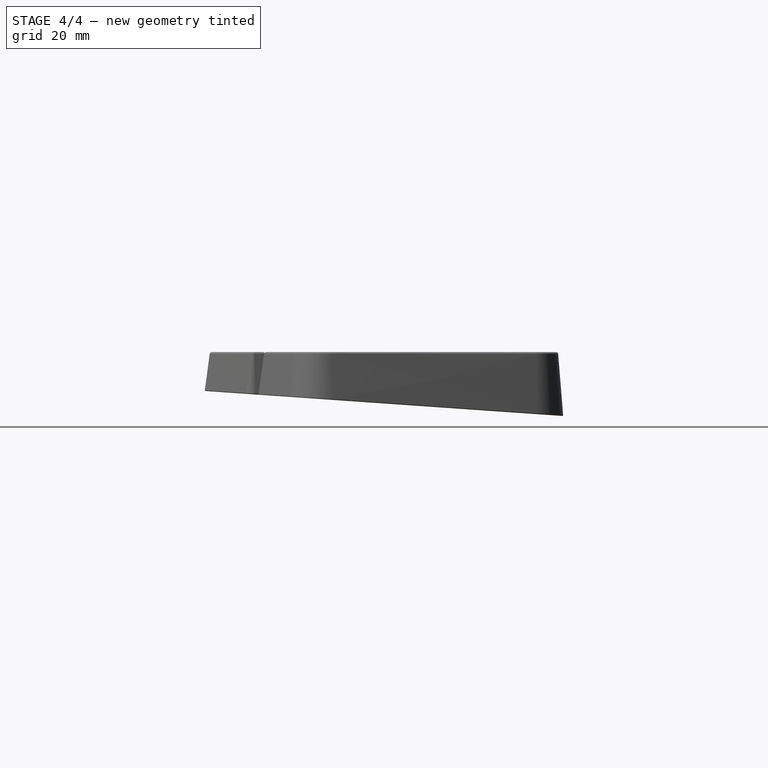
[diagram: stage 4 of 4 — right view after this stage's code; geometry added in this stage tinted green]
FEATURE [Sketcher::SketchObject] Sketch004
  ExternalGeometry = -> [Pocket001]
  FullyConstrained = true
  MapMode = 5
  Placement = pos=(0,0,8) rot=(0,0,1;0rad)
  Support = -> [Pocket]
  sketch-geometry (2):
    g0: Circle CenterX=98.1026 CenterY=36.658 CenterZ=0 NormalX=0 NormalY=0 NormalZ=1 AngleXU=0 Radius=1.1
    g1: Circle CenterX=121.71 CenterY=-16.6741 CenterZ=0 NormalX=0 NormalY=0 NormalZ=1 AngleXU=0 Radius=1.1
  constraints (4):
    c: Coincident(g0,g-3)
    c: Coincident(g1,g-4)
    c: Equal(g0,g1)
    c: Diameter(g0) = 2.2
FEATURE [PartDesign::Hole] Hole
  BaseFeature = -> Pocket001
  CustomThreadClearance = 0
  Depth = 267.478
  DepthType = 1
  Diameter = 2.42
  DrillForDepth = false
  DrillPoint = 1
  DrillPointAngle = 118
  HoleCutCountersinkAngle = 90
  HoleCutCustomValues = false
  HoleCutDepth = 0
  HoleCutDiameter = 6.1
  HoleCutType = 0
  ModelThread = false
  Profile = -> Sketch004
  Tapered = false
  TaperedAngle = 90
  ThreadClass = 0
  ThreadDepth = 267.478
  ThreadDepthType = 0
  ThreadDirection = 0
  ThreadFit = 0
  ThreadSize = 7
  ThreadType = 1
  Threaded = false
  UseCustomThreadClearance = false
FEATURE [PartDesign::Chamfer] Chamfer
  Angle = 45
  Base = -> Hole [Edge13,Edge14]
  BaseFeature = -> Hole
  ChamferType = 0
  FlipDirection = false
  Size = 3
  Size2 = 1
  SupportTransform = false
  UseAllEdges = false
FEATURE [PartDesign::Fillet] Fillet
  Base = -> Chamfer [Face18,Edge94,Edge42,Edge43,Edge44,Face17,Edge24,Edge23,Edge22,Edge98,Edge52]
  BaseFeature = -> Chamfer
  Radius = 0.75
  SupportTransform = false
  UseAllEdges = false
FEATURE [PartDesign::Fillet] Fillet001
  Base = -> Fillet [Face4]
  BaseFeature = -> Fillet
  Radius = 0.3
  SupportTransform = false
  UseAllEdges = false
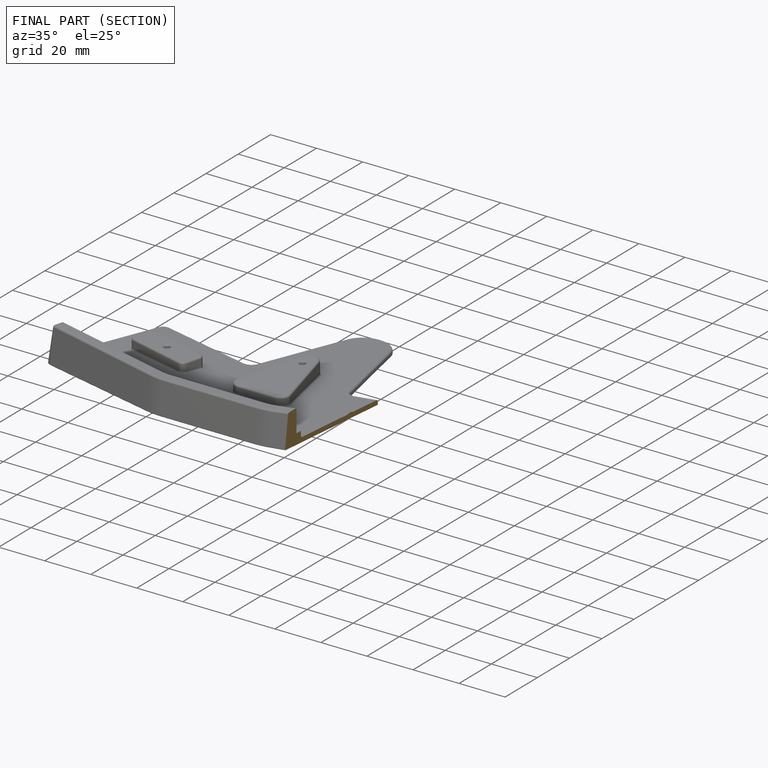
[diagram: finished part — half-section view (interior)]
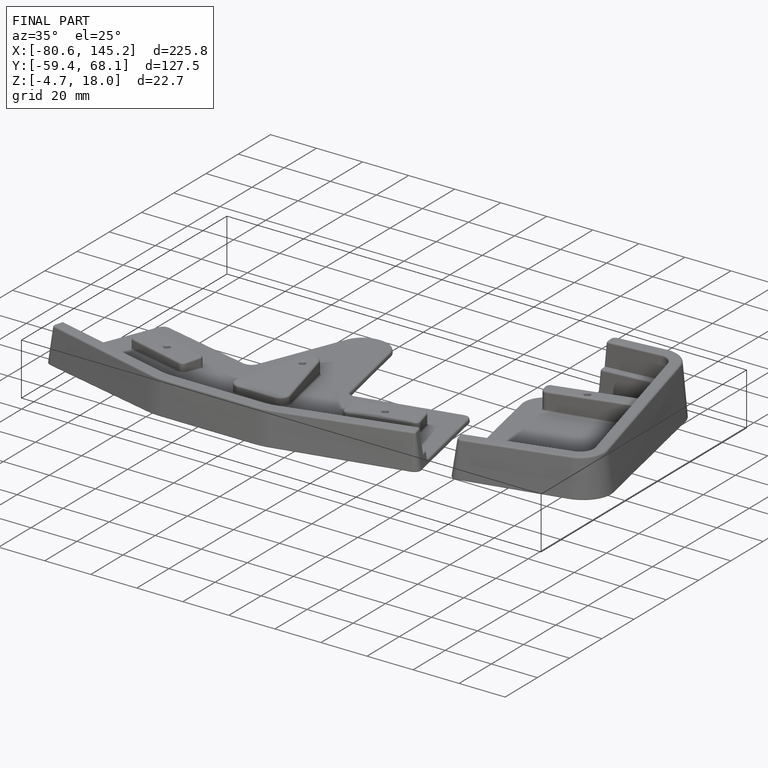
[diagram: finished part — iso view with bounding-box wireframe]
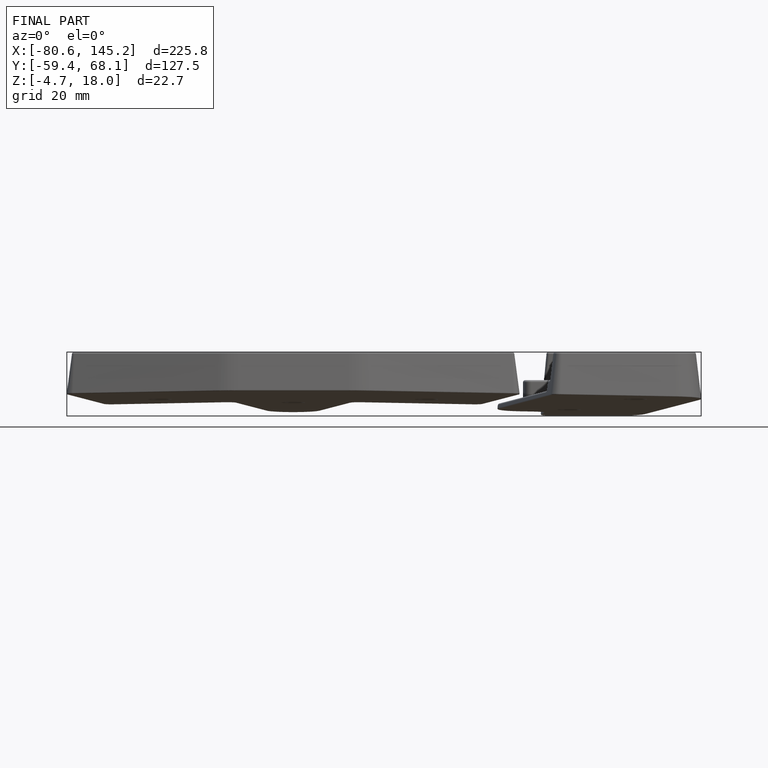
[diagram: finished part — front view with bounding-box wireframe]
